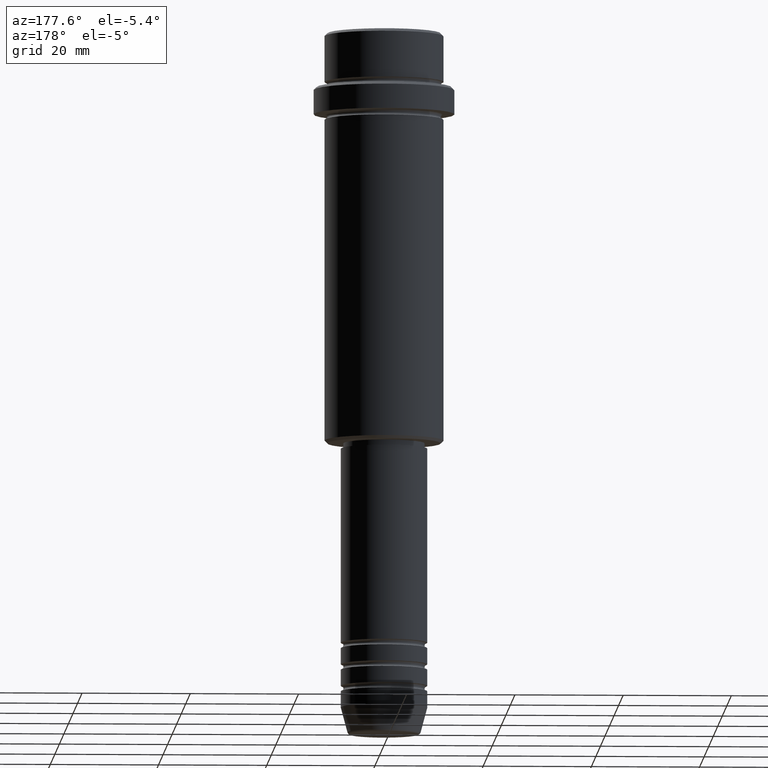
[diagram: clean part render]
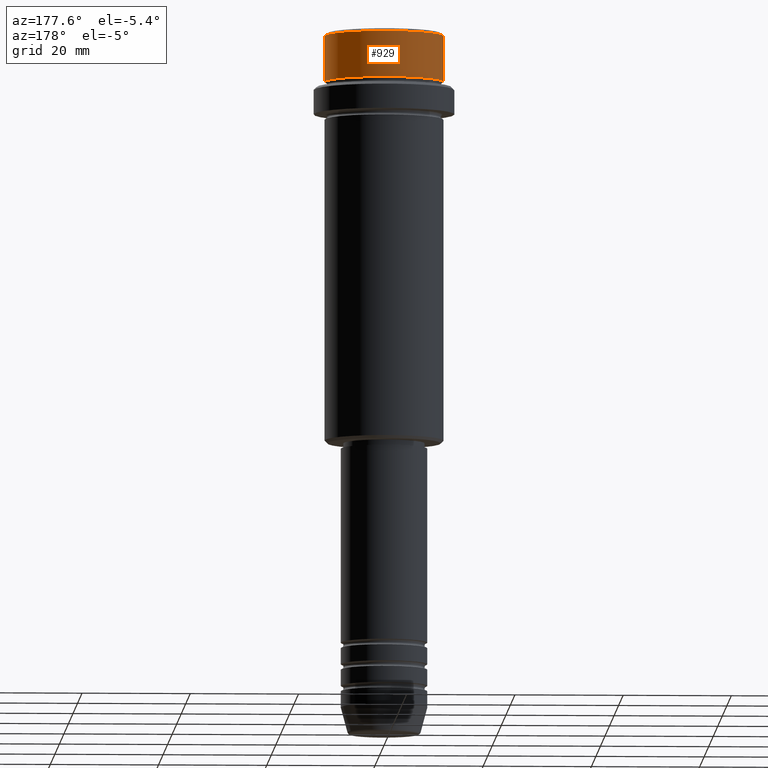
[diagram: same view with one face highlighted and labeled with its STEP entity id]
A machine part, auxiliary view. The second image highlights one B-rep face of the part: STEP entity #929.
In plain terms, the highlighted cylindrical surface (partial cylindrical patch) has radius 11 mm, axis along (-0, -0, 1).
Its self-contained STEP definition (entity closure, byte-faithful):
#11 = EDGE_CURVE ( 'NONE', #219, #747, #224, .T. ) ;
#34 = CARTESIAN_POINT ( 'NONE',  ( -10.99999999999998757, 1.347111479062086827E-15, 0.000000000000000000 ) ) ;
#138 = LINE ( 'NONE', #34, #997 ) ;
#154 = DIRECTION ( 'NONE',  ( -0.000000000000000000, -0.000000000000000000, 1.000000000000000000 ) ) ;
#215 = DIRECTION ( 'NONE',  ( 1.000000000000000000, 0.000000000000000000, 0.000000000000000000 ) ) ;
#219 = VERTEX_POINT ( 'NONE', #285 ) ;
#224 = CIRCLE ( 'NONE', #1024, 10.99999999999997158 ) ;
#285 = CARTESIAN_POINT ( 'NONE',  ( 10.99999999999997158, 0.000000000000000000, -9.000000000000000000 ) ) ;
#319 = CIRCLE ( 'NONE', #956, 10.99999999999998757 ) ;
#382 = DIRECTION ( 'NONE',  ( 1.000000000000000000, 0.000000000000000000, 0.000000000000000000 ) ) ;
#394 = EDGE_CURVE ( 'NONE', #747, #680, #138, .T. ) ;
#437 = FACE_OUTER_BOUND ( 'NONE', #515, .T. ) ;
#449 = AXIS2_PLACEMENT_3D ( 'NONE', #727, #1404, #215 ) ;
#515 = EDGE_LOOP ( 'NONE', ( #972, #884, #1290, #1388 ) ) ;
#546 = CARTESIAN_POINT ( 'NONE',  ( 10.99999999999998757, 0.000000000000000000, 0.000000000000000000 ) ) ;
#552 = VERTEX_POINT ( 'NONE', #756 ) ;
#578 = LINE ( 'NONE', #546, #692 ) ;
#648 = CYLINDRICAL_SURFACE ( 'NONE', #449, 10.99999999999998757 ) ;
#680 = VERTEX_POINT ( 'NONE', #901 ) ;
#684 = EDGE_CURVE ( 'NONE', #219, #552, #578, .T. ) ;
#692 = VECTOR ( 'NONE', #895, 1000.000000000000000 ) ;
#705 = CARTESIAN_POINT ( 'NONE',  ( -10.99999999999997158, 1.347111479062085841E-15, -9.000000000000000000 ) ) ;
#727 = CARTESIAN_POINT ( 'NONE',  ( 0.000000000000000000, 0.000000000000000000, 0.000000000000000000 ) ) ;
#747 = VERTEX_POINT ( 'NONE', #705 ) ;
#756 = CARTESIAN_POINT ( 'NONE',  ( 10.99999999999998757, 0.000000000000000000, -0.4999999999999882871 ) ) ;
#884 = ORIENTED_EDGE ( 'NONE', *, *, #394, .T. ) ;
#889 = DIRECTION ( 'NONE',  ( 0.000000000000000000, 0.000000000000000000, -1.000000000000000000 ) ) ;
#895 = DIRECTION ( 'NONE',  ( -0.000000000000000000, -0.000000000000000000, 1.000000000000000000 ) ) ;
#901 = CARTESIAN_POINT ( 'NONE',  ( -10.99999999999998757, 1.347111479062086827E-15, -0.4999999999999882871 ) ) ;
#929 = ADVANCED_FACE ( 'NONE', ( #437 ), #648, .T. ) ;
#956 = AXIS2_PLACEMENT_3D ( 'NONE', #1194, #889, #1320 ) ;
#972 = ORIENTED_EDGE ( 'NONE', *, *, #11, .T. ) ;
#997 = VECTOR ( 'NONE', #1013, 1000.000000000000000 ) ;
#1013 = DIRECTION ( 'NONE',  ( -0.000000000000000000, -0.000000000000000000, 1.000000000000000000 ) ) ;
#1024 = AXIS2_PLACEMENT_3D ( 'NONE', #1130, #154, #382 ) ;
#1130 = CARTESIAN_POINT ( 'NONE',  ( 0.000000000000000000, 0.000000000000000000, -9.000000000000000000 ) ) ;
#1194 = CARTESIAN_POINT ( 'NONE',  ( 0.000000000000000000, 0.000000000000000000, -0.4999999999999882871 ) ) ;
#1290 = ORIENTED_EDGE ( 'NONE', *, *, #1412, .T. ) ;
#1320 = DIRECTION ( 'NONE',  ( 1.000000000000000000, 0.000000000000000000, 0.000000000000000000 ) ) ;
#1388 = ORIENTED_EDGE ( 'NONE', *, *, #684, .F. ) ;
#1404 = DIRECTION ( 'NONE',  ( -0.000000000000000000, -0.000000000000000000, 1.000000000000000000 ) ) ;
#1412 = EDGE_CURVE ( 'NONE', #680, #552, #319, .T. ) ;